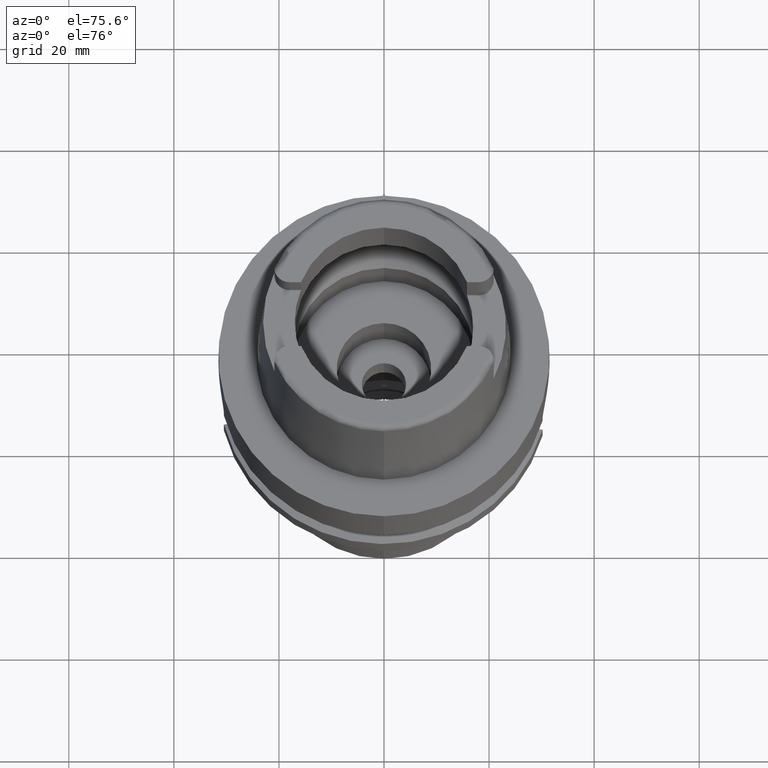
[diagram: clean part render]
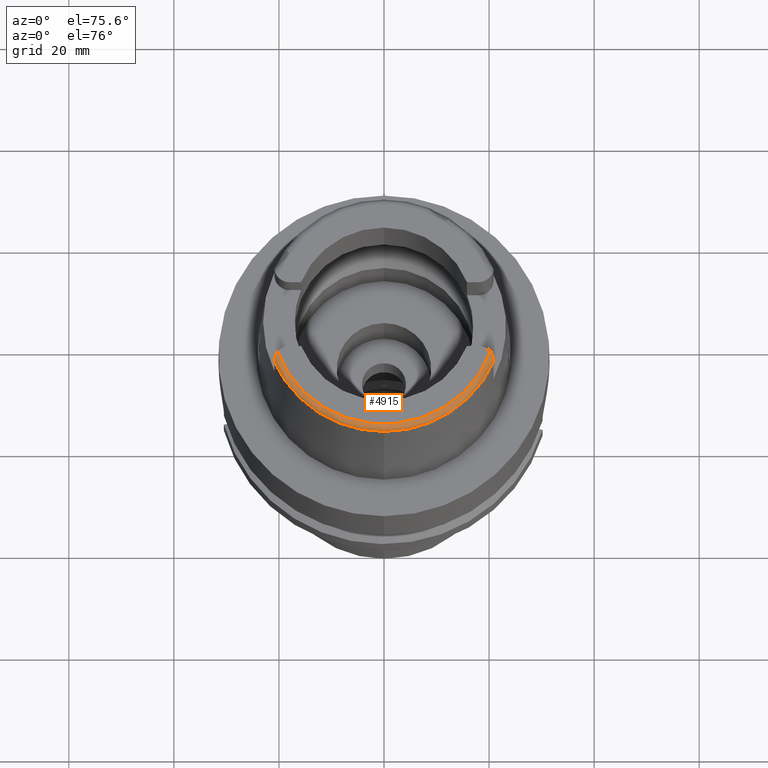
[diagram: same view with one face highlighted and labeled with its STEP entity id]
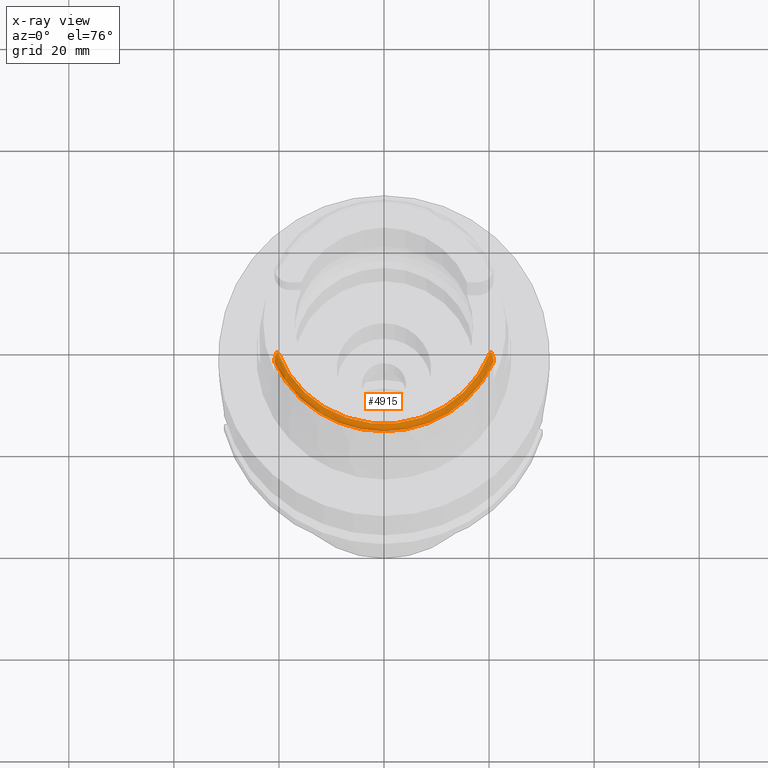
[diagram: x-ray of the same camera — body ghosted, the highlighted face saturated]
A machine part, auxiliary view. The second image highlights one B-rep face of the part: STEP entity #4915.
The next image is the same camera in x-ray: the body ghosted, the highlighted face saturated — about 0% of this face is hidden behind the body in this view.
In plain terms, the highlighted toroidal blend (fillet) surface has major radius 21.5735 mm and minor (blend) radius 1.2 mm.
Its self-contained STEP definition (entity closure, byte-faithful):
#214 = CARTESIAN_POINT ( 'NONE',  ( -20.86790745725409479, -9.038999757998217532, 31.07698006143420599 ) ) ;
#238 = CARTESIAN_POINT ( 'NONE',  ( 20.80222334976368259, -8.528184611825807337, 31.58385314191355064 ) ) ;
#247 = CARTESIAN_POINT ( 'NONE',  ( -20.84613490749087816, -8.778749061723571501, 31.38986957715463078 ) ) ;
#272 = CARTESIAN_POINT ( 'NONE',  ( 20.85625302903315870, -8.867709932646478777, 31.30382334819980272 ) ) ;
#280 = CARTESIAN_POINT ( 'NONE',  ( -20.84178700340331858, -8.746365972423461699, 31.41833348522075298 ) ) ;
#310 = CARTESIAN_POINT ( 'NONE',  ( -20.67618067232188039, -8.110640499689454330, 31.81771103222562402 ) ) ;
#333 = CARTESIAN_POINT ( 'NONE',  ( 20.86281176462357223, -8.945573343632714725, 31.21509086426662805 ) ) ;
#363 = CARTESIAN_POINT ( 'NONE',  ( 20.57247249498112041, -7.874774620254050284, 31.91096707899896501 ) ) ;
#378 = DIRECTION ( 'NONE',  ( 0.9164655183265837390, -0.4001136759951928745, 0.0000000000000000000 ) ) ;
#660 = ORIENTED_EDGE ( 'NONE', *, *, #3171, .F. ) ;
#679 = CARTESIAN_POINT ( 'NONE',  ( -20.41200615129916329, -7.574186678069117384, 32.00000000000000000 ) ) ;
#709 = CARTESIAN_POINT ( 'NONE',  ( 20.74486153534167698, -8.310159890221054724, 31.71715145820583359 ) ) ;
#717 = CARTESIAN_POINT ( 'NONE',  ( -20.64923906300328937, -8.044082043677981630, 31.84654806803873583 ) ) ;
#740 = CARTESIAN_POINT ( 'NONE',  ( 20.86974110883999955, -9.111383541117000107, 30.85992743331999932 ) ) ;
#780 = CARTESIAN_POINT ( 'NONE',  ( 20.50071769770268304, -7.737764948688597322, 31.95251577546610733 ) ) ;
#788 = CARTESIAN_POINT ( 'NONE',  ( -20.75953699257897966, -8.359931948837560967, 31.68898781436486090 ) ) ;
#811 = CARTESIAN_POINT ( 'NONE',  ( 20.76646356683116323, -8.383189757247198060, 31.67591841305518585 ) ) ;
#821 = CARTESIAN_POINT ( 'NONE',  ( -20.86840108346034839, -9.053287484996772605, 31.04958254792135364 ) ) ;
#841 = CARTESIAN_POINT ( 'NONE',  ( 20.53033455740952107, -7.791708366233603300, 31.93767695529927408 ) ) ;
#857 = DIRECTION ( 'NONE',  ( 0.0000000000000000000, 0.0000000000000000000, 1.000000000000000000 ) ) ;
#882 = CARTESIAN_POINT ( 'NONE',  ( 0.0000000000000000000, 0.0000000000000000000, 30.85992712280000205 ) ) ;
#1137 = DIRECTION ( 'NONE',  ( 0.9395199128801114963, -0.3424942821446042007, 0.0000000000000000000 ) ) ;
#1160 = CARTESIAN_POINT ( 'NONE',  ( -20.86974104081999926, -9.111384060273000074, 30.85992587239999807 ) ) ;
#1171 = VERTEX_POINT ( 'NONE', #740 ) ;
#1189 = CARTESIAN_POINT ( 'NONE',  ( 20.79468869054202784, -8.495291602101262995, 31.60567251226849805 ) ) ;
#1197 = CARTESIAN_POINT ( 'NONE',  ( -20.86132591677934300, -8.922305432744785492, 31.24600162383531199 ) ) ;
#1215 = AXIS2_PLACEMENT_3D ( 'NONE', #5218, #857, #6023 ) ;
#1303 = CARTESIAN_POINT ( 'NONE',  ( -20.80942414464082901, -8.560859283335096492, 31.56171985785152856 ) ) ;
#1308 = CARTESIAN_POINT ( 'NONE',  ( 0.0000000000000000000, -22.77198729362000051, 30.85992712280000205 ) ) ;
#1326 = CARTESIAN_POINT ( 'NONE',  ( 20.73662055975382401, -8.283588440961109356, 31.73166138317631280 ) ) ;
#1356 = CARTESIAN_POINT ( 'NONE',  ( 20.26871835884000106, -7.388795116669998997, 32.00000000000000000 ) ) ;
#1589 = AXIS2_PLACEMENT_3D ( 'NONE', #3984, #3100, #2531 ) ;
#1750 = CARTESIAN_POINT ( 'NONE',  ( 20.69204808253731898, -8.150539061945641706, 31.80015922230779779 ) ) ;
#1760 = CARTESIAN_POINT ( 'NONE',  ( -20.80007257606911963, -8.517561058562481691, 31.59135779440319070 ) ) ;
#1783 = CARTESIAN_POINT ( 'NONE',  ( 20.34035072818725709, -7.481475983418526710, 32.00000000000001421 ) ) ;
#1790 = CARTESIAN_POINT ( 'NONE',  ( -20.64419859869799012, -8.032019693119494264, 31.85159956395659719 ) ) ;
#1795 = DIRECTION ( 'NONE',  ( 0.0000000000000000000, 0.0000000000000000000, -1.000000000000000000 ) ) ;
#1839 = AXIS2_PLACEMENT_3D ( 'NONE', #2997, #4035, #1137 ) ;
#1921 = EDGE_CURVE ( 'NONE', #2441, #2871, #5284, .T. ) ;
#2186 = CARTESIAN_POINT ( 'NONE',  ( 20.77858276733113740, -8.428686546446186867, 31.64848280840178063 ) ) ;
#2220 = CARTESIAN_POINT ( 'NONE',  ( 20.86093763828336378, -8.920193155767238480, 31.24585286527775807 ) ) ;
#2228 = CARTESIAN_POINT ( 'NONE',  ( -20.82120021722351311, -8.621989291098431707, 31.51700015820210155 ) ) ;
#2253 = CARTESIAN_POINT ( 'NONE',  ( 20.40777164776249464, -7.580406087513147817, 31.98812894386653127 ) ) ;
#2309 = VERTEX_POINT ( 'NONE', #1356 ) ;
#2316 = CARTESIAN_POINT ( 'NONE',  ( 20.81571228465411494, -8.593362675013910490, 31.53799360413406916 ) ) ;
#2441 = VERTEX_POINT ( 'NONE', #6163 ) ;
#2531 = DIRECTION ( 'NONE',  ( 0.0000000000000000000, -1.000000000000000000, 0.0000000000000000000 ) ) ;
#2661 = CARTESIAN_POINT ( 'NONE',  ( 20.59296958126290278, -7.916845166845000392, 31.89649922933629611 ) ) ;
#2668 = CARTESIAN_POINT ( 'NONE',  ( -20.86946667561479174, -9.089534345949676464, 30.96772567881468774 ) ) ;
#2731 = CARTESIAN_POINT ( 'NONE',  ( 20.86956653079790058, -9.098365849717223952, 30.96729463641348445 ) ) ;
#2738 = CARTESIAN_POINT ( 'NONE',  ( -20.71118720904526356, -8.203870027588193281, 31.77423780994864089 ) ) ;
#2835 = ORIENTED_EDGE ( 'NONE', *, *, #4701, .T. ) ;
#2871 = VERTEX_POINT ( 'NONE', #4761 ) ;
#2997 = CARTESIAN_POINT ( 'NONE',  ( 0.0000000000000000000, 0.0000000000000000000, 32.00000000000000000 ) ) ;
#3100 = DIRECTION ( 'NONE',  ( 0.0000000000000000000, 0.0000000000000000000, -1.000000000000000000 ) ) ;
#3121 = CARTESIAN_POINT ( 'NONE',  ( -20.82953241597558147, -8.668278592730544574, 31.48192565791441666 ) ) ;
#3171 = EDGE_CURVE ( 'NONE', #2309, #1171, #5575, .T. ) ;
#3172 = EDGE_LOOP ( 'NONE', ( #5561, #5125, #3745, #660, #2835 ) ) ;
#3182 = CARTESIAN_POINT ( 'NONE',  ( 20.63228118170898284, -8.004155692172862047, 31.86297245017093260 ) ) ;
#3252 = CARTESIAN_POINT ( 'NONE',  ( -20.76599522496222860, -8.382932082721513467, 31.67554025237424753 ) ) ;
#3567 = EDGE_CURVE ( 'NONE', #5530, #2441, #4325, .T. ) ;
#3622 = CARTESIAN_POINT ( 'NONE',  ( -20.81960671729082435, -8.613492049288943520, 31.52330103087670210 ) ) ;
#3649 = CARTESIAN_POINT ( 'NONE',  ( 20.80903085625993043, -8.560437565187440256, 31.56141243812617247 ) ) ;
#3657 = CARTESIAN_POINT ( 'NONE',  ( -20.78396846929363662, -8.450956427002880744, 31.63416901168845996 ) ) ;
#3691 = AXIS2_PLACEMENT_3D ( 'NONE', #882, #1795, #378 ) ;
#3745 = ORIENTED_EDGE ( 'NONE', *, *, #4113, .F. ) ;
#3984 = CARTESIAN_POINT ( 'NONE',  ( 0.0000000000000000000, 0.0000000000000000000, 30.85992712280000205 ) ) ;
#4035 = DIRECTION ( 'NONE',  ( 0.0000000000000000000, 0.0000000000000000000, -1.000000000000000000 ) ) ;
#4113 = EDGE_CURVE ( 'NONE', #1171, #5530, #4991, .T. ) ;
#4123 = CARTESIAN_POINT ( 'NONE',  ( -20.82461691843954554, -8.640650508572479183, 31.50298326152860184 ) ) ;
#4151 = CARTESIAN_POINT ( 'NONE',  ( 20.86974110883999955, -9.111383541117000107, 30.85992743331999932 ) ) ;
#4160 = CARTESIAN_POINT ( 'NONE',  ( -20.86555521819517622, -8.988533219540206787, 31.15802921132233649 ) ) ;
#4196 = CARTESIAN_POINT ( 'NONE',  ( -20.66015355920863072, -8.070700740960328190, 31.83516962541796502 ) ) ;
#4249 = CARTESIAN_POINT ( 'NONE',  ( 20.86947848221361212, -9.049966229907754567, 31.07643898833348928 ) ) ;
#4268 = TOROIDAL_SURFACE ( 'NONE', #1215, 21.57348458609000019, 1.199999999999999956 ) ;
#4325 = CIRCLE ( 'NONE', #1589, 22.77198729362000051 ) ;
#4571 = CARTESIAN_POINT ( 'NONE',  ( -20.26871835884000106, -7.388795116668999796, 32.00000000000000000 ) ) ;
#4597 = CARTESIAN_POINT ( 'NONE',  ( 20.74935935282037036, -8.325086243963351507, 31.70883217791094921 ) ) ;
#4626 = CARTESIAN_POINT ( 'NONE',  ( 20.84251140692378357, -8.748359979549757526, 31.41854656306727023 ) ) ;
#4647 = FACE_OUTER_BOUND ( 'NONE', #3172, .T. ) ;
#4658 = CARTESIAN_POINT ( 'NONE',  ( 20.85336542802521720, -8.839399881271193138, 31.33263462523560605 ) ) ;
#4701 = EDGE_CURVE ( 'NONE', #2309, #2871, #4773, .T. ) ;
#4721 = CARTESIAN_POINT ( 'NONE',  ( 20.66070814380693577, -8.070619461683870455, 31.83584683130793991 ) ) ;
#4761 = CARTESIAN_POINT ( 'NONE',  ( -20.26871835884000106, -7.388795116668999796, 32.00000000000000000 ) ) ;
#4773 = CIRCLE ( 'NONE', #1839, 21.57348458608998598 ) ;
#4915 = ADVANCED_FACE ( 'NONE', ( #4647 ), #4268, .T. ) ;
#4991 = CIRCLE ( 'NONE', #3691, 22.77198729362000407 ) ;
#5046 = CARTESIAN_POINT ( 'NONE',  ( -20.75669432966115480, -8.350003987888964474, 31.69471610755016755 ) ) ;
#5077 = CARTESIAN_POINT ( 'NONE',  ( -20.77539708129608442, -8.417240240790007988, 31.65516319844552484 ) ) ;
#5125 = ORIENTED_EDGE ( 'NONE', *, *, #3567, .F. ) ;
#5138 = CARTESIAN_POINT ( 'NONE',  ( 20.26871835884000106, -7.388795116669998997, 32.00000000000000000 ) ) ;
#5146 = CARTESIAN_POINT ( 'NONE',  ( -20.83385302478009038, -8.694805142056058145, 31.46077127848844768 ) ) ;
#5178 = CARTESIAN_POINT ( 'NONE',  ( -20.53846350163239620, -7.784797903600631841, 31.95251186046610314 ) ) ;
#5218 = CARTESIAN_POINT ( 'NONE',  ( 0.0000000000000000000, 0.0000000000000000000, 30.80000000000000071 ) ) ;
#5284 = B_SPLINE_CURVE_WITH_KNOTS ( 'NONE', 3,
 ( #1160, #5595, #2668, #821, #214, #6084, #4160, #1197, #6143, #247, #280, #5146, #3121, #4123, #2228, #3622, #1303, #1760, #3657, #5077, #3252, #788, #5046, #6111, #2738, #310, #4196, #717, #1790, #5178, #679, #4571 ),
 .UNSPECIFIED., .F., .F.,
 ( 4, 2, 2, 2, 2, 2, 1, 2, 2, 2, 1, 2, 2, 1, 1, 2, 2, 4 ),
 ( 0.0000000000000000000, 0.1250000000000193456, 0.1875000000000282829, 0.2500000000000372480, 0.3750000000000524025, 0.4375000000000597855, 0.4687500000000591749, 0.4843750000000563438, 0.5000000000000535127, 0.5625000000000377476, 0.5937500000000295319, 0.6093750000000280886, 0.6250000000000267564, 0.6875000000000196509, 0.7187500000000174305, 0.7343750000000155431, 0.7500000000000135447, 1.000000000000000000 ),
 .UNSPECIFIED. ) ;
#5530 = VERTEX_POINT ( 'NONE', #1308 ) ;
#5551 = CARTESIAN_POINT ( 'NONE',  ( 20.83237762677333293, -8.679499023975097316, 31.47512533058744566 ) ) ;
#5561 = ORIENTED_EDGE ( 'NONE', *, *, #1921, .F. ) ;
#5575 = B_SPLINE_CURVE_WITH_KNOTS ( 'NONE', 3,
 ( #5138, #1783, #2253, #780, #841, #363, #2661, #5586, #6105, #3182, #4721, #1750, #6136, #1326, #709, #4597, #811, #2186, #1189, #238, #3649, #5618, #2316, #5551, #4626, #4658, #272, #2220, #333, #4249, #2731, #4151 ),
 .UNSPECIFIED., .F., .F.,
 ( 4, 2, 2, 1, 2, 2, 1, 1, 2, 2, 2, 1, 2, 2, 2, 2, 2, 4 ),
 ( 0.0000000000000000000, 0.1249999999999995282, 0.1874999999999994449, 0.2187499999999979461, 0.2343749999999978628, 0.2499999999999977796, 0.3124999999999982236, 0.3437499999999978906, 0.3593749999999961697, 0.3749999999999944489, 0.4374999999999852340, 0.4687499999999785172, 0.4843749999999777955, 0.4999999999999770739, 0.6249999999999791278, 0.6874999999999803491, 0.7499999999999815703, 1.000000000000000000 ),
 .UNSPECIFIED. ) ;
#5586 = CARTESIAN_POINT ( 'NONE',  ( 20.61256363989084051, -7.959702626786254065, 31.88036201240486278 ) ) ;
#5595 = CARTESIAN_POINT ( 'NONE',  ( -20.86965383266364071, -9.104876115193695441, 30.91360199465275471 ) ) ;
#5618 = CARTESIAN_POINT ( 'NONE',  ( 20.81341311117484238, -8.581794723067705633, 31.54631389483850867 ) ) ;
#6023 = DIRECTION ( 'NONE',  ( -0.0006539142454762719193, -0.9999997861980568503, 0.0000000000000000000 ) ) ;
#6084 = CARTESIAN_POINT ( 'NONE',  ( -20.86644628958373460, -9.006023858284962103, 31.13199886941449179 ) ) ;
#6105 = CARTESIAN_POINT ( 'NONE',  ( 20.62542064162097688, -7.988446762444735505, 31.86923289727971920 ) ) ;
#6111 = CARTESIAN_POINT ( 'NONE',  ( -20.73717458476992803, -8.283691780277775862, 31.73228389686284245 ) ) ;
#6136 = CARTESIAN_POINT ( 'NONE',  ( 20.72393559120915185, -8.243708772449179989, 31.75303416233644072 ) ) ;
#6143 = CARTESIAN_POINT ( 'NONE',  ( -20.85698683884869808, -8.869782331562225508, 31.30396171529339355 ) ) ;
#6163 = CARTESIAN_POINT ( 'NONE',  ( -20.86974104081999926, -9.111384060273000074, 30.85992587239999807 ) ) ;